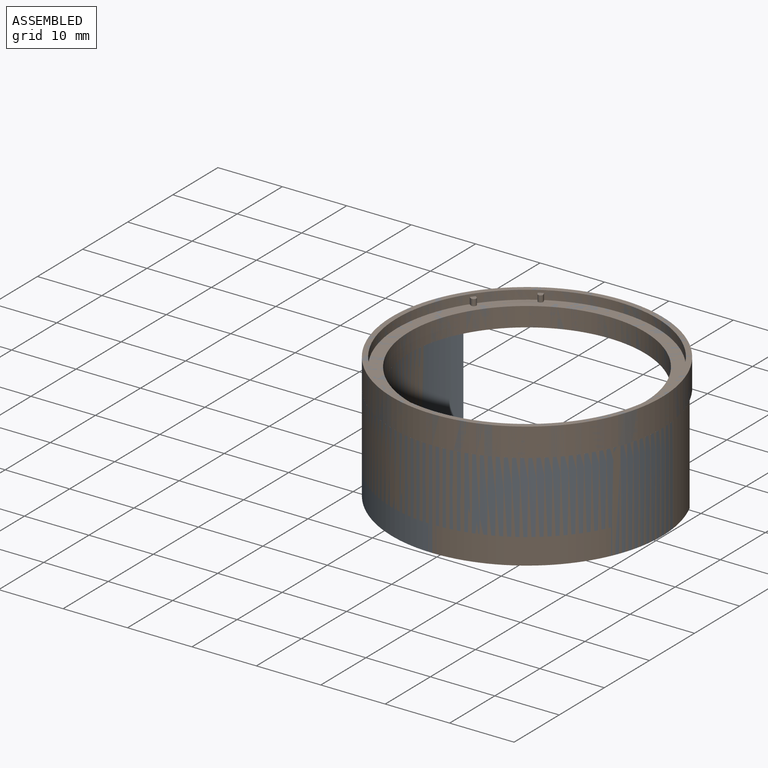
[diagram: assembled view]
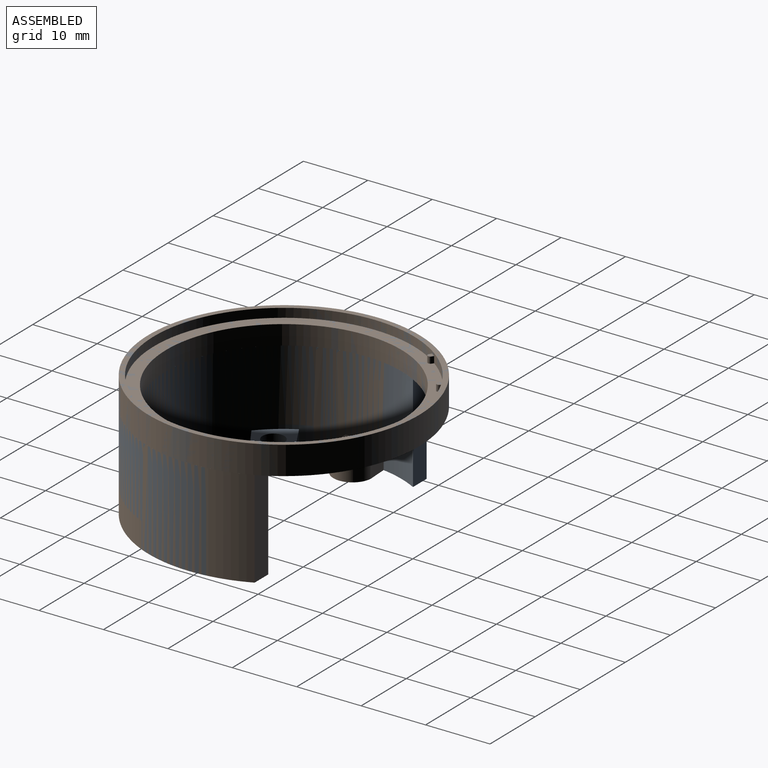
[diagram: assembled view, second angle]
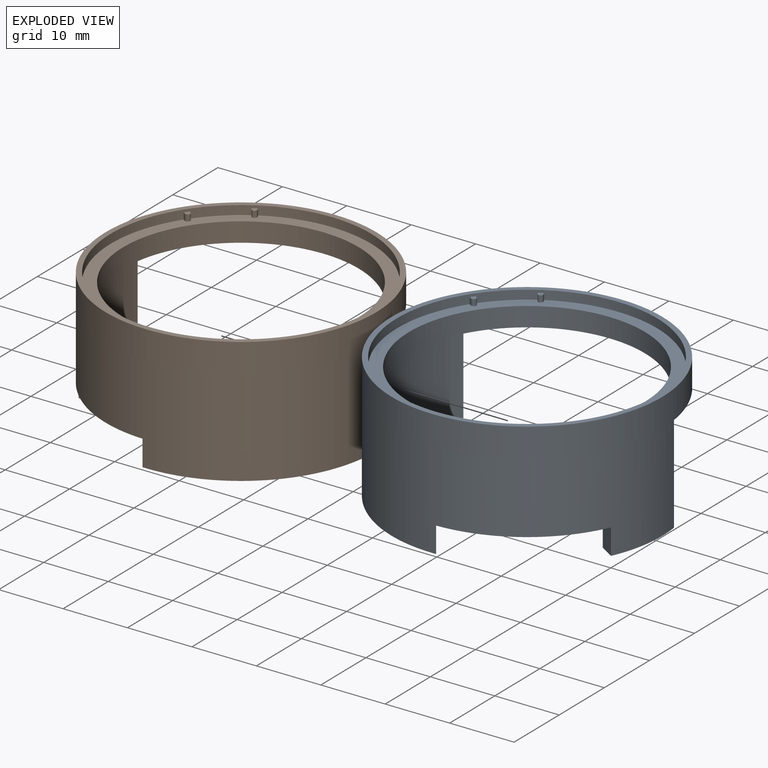
[diagram: exploded view]
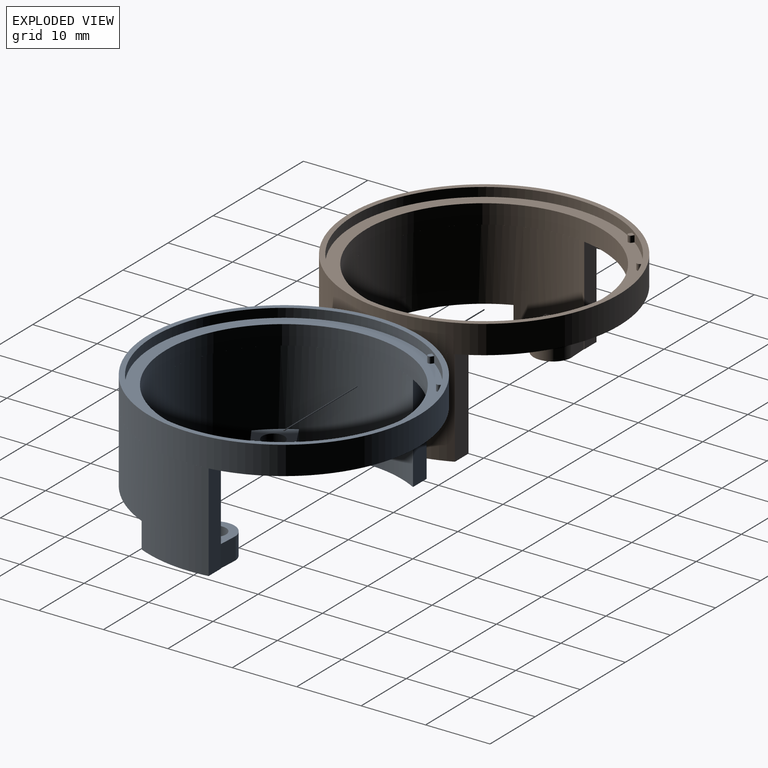
[diagram: exploded view, second angle]
FCSTD DOCUMENT  (FreeCAD 1.0RUnknown)
Label: cirque
License: All rights reserved
LicenseURL: https://en.wikipedia.org/wiki/All_rights_reserved
objects: Sketcher::SketchObject×3, App::Link×3, PartDesign::Pad×2, App::Part×2, Part::Feature×1, Part::Mirroring×1, PartDesign::Pocket×1, PartDesign::Body×1
note: 18 computed .brp shape members not serialized (recipe doc carries the construction recipe); baked Part::Feature solids carry a one-line shape summary decoded from their .brp

FEATURE [Part::Feature] Part__Feature  label="cirque 40mm"
  Placement = pos=(52.4,-44.7,14.1) rot=(0,0,1;1.5708rad)
  shape: bbox 42 x 42 x 4.4 mm, 14 faces (baked)
FEATURE [Sketcher::SketchObject] Sketch
  ArcFitTolerance = 1e-06
  AttachmentSupport = -> [XY_Plane001]
  FullyConstrained = false
  MakeInternals = false
  MapMode = 5
  sketch-geometry (4):
    g0: ArcOfCircle CenterX=0 CenterY=0 CenterZ=0 NormalX=0 NormalY=0 NormalZ=1 AngleXU=0 Radius=21 StartAngle=2.70864 EndAngle=6.42098
    g1: ArcOfCircle CenterX=0 CenterY=0 CenterZ=0 NormalX=0 NormalY=0 NormalZ=1 AngleXU=0 Radius=18.3 StartAngle=2.63928 EndAngle=6.44147
    g2: LineSegment StartX=-19.0623 StartY=8.81065 StartZ=0 EndX=-16.0394 EndY=8.81065 EndZ=0
    g3: LineSegment StartX=18.0712 StartY=2.88445 StartZ=0 EndX=20.801 EndY=2.88445 EndZ=0
  constraints (10):
    c: Radius(g0) = 21
    c: Coincident(g0,g-1)
    c: Radius(g1) = 18.3
    c: Coincident(g1,g0)
    c: Coincident(g2,g0)
    c: Coincident(g2,g1)
    c: Coincident(g3,g1)
    c: Coincident(g3,g0)
    c: Horizontal(g2)
    c: Horizontal(g3)
FEATURE [PartDesign::Pad] Pad
  Direction = (0,0,1)
  Length = 15.1
  Length2 = 10
  Profile = -> Sketch
  ReferenceAxis = -> Sketch [N_Axis]
  Refine = true
  Suppressed = false
  Type = 0
FEATURE [App::Link] Link  label="cirque 40mm001"
  LinkPlacement = pos=(0,0,18.1) rot=(0,0,1;1.5708rad)
  LinkedObject = -> Part__Feature
  Placement = pos=(0,0,18.1) rot=(0,0,1;1.5708rad)
FEATURE [Sketcher::SketchObject] Sketch001
  ArcFitTolerance = 1e-06
  AttachmentSupport = -> [XY_Plane001]
  FullyConstrained = false
  MakeInternals = false
  MapMode = 5
  sketch-geometry (14):
    g0: Circle [constr] CenterX=0 CenterY=0 CenterZ=0 NormalX=0 NormalY=0 NormalZ=1 AngleXU=0 Radius=15.25
    g1: LineSegment [constr] StartX=0 StartY=0 StartZ=0 EndX=15.25 EndY=0 EndZ=0
    g2: LineSegment [constr] StartX=0 StartY=0 StartZ=0 EndX=-11.6822 EndY=-9.80251 EndZ=0
    g3: Circle CenterX=15.25 CenterY=0 CenterZ=0 NormalX=0 NormalY=0 NormalZ=1 AngleXU=0 Radius=1.7
    g4: Circle CenterX=-11.6822 CenterY=-9.80251 CenterZ=0 NormalX=0 NormalY=0 NormalZ=1 AngleXU=0 Radius=1.7
    g5: ArcOfCircle CenterX=15.25 CenterY=0 CenterZ=0 NormalX=0 NormalY=0 NormalZ=1 AngleXU=0 Radius=3 StartAngle=1.66932 EndAngle=4.61387
    g6: ArcOfCircle CenterX=-11.6822 CenterY=-9.80251 CenterZ=0 NormalX=0 NormalY=0 NormalZ=1 AngleXU=0 Radius=3 StartAngle=5.50904 EndAngle=8.45359
    g7: LineSegment [constr] StartX=-11.6822 StartY=-9.80251 StartZ=0 EndX=15.25 EndY=0 EndZ=0
    g8: LineSegment StartX=-13.3751 StartY=-7.32585 StartZ=0 EndX=-16.3659 EndY=-9.06894 EndZ=0
    g9: LineSegment StartX=-16.3659 StartY=-9.06894 StartZ=0 EndX=-12.9413 EndY=-14.0541 EndZ=0
    g10: LineSegment StartX=-9.53712 StartY=-11.8998 StartZ=0 EndX=-12.9413 EndY=-14.0541 EndZ=0
    g11: LineSegment StartX=14.9549 StartY=2.98545 StartZ=0 EndX=18.203 EndY=2.81232 EndZ=0
    g12: LineSegment StartX=18.203 StartY=2.81232 StartZ=0 EndX=18.9442 EndY=-3.11774 EndZ=0
    g13: LineSegment StartX=18.9442 StartY=-3.11774 StartZ=0 EndX=14.9549 EndY=-2.98545 EndZ=0
  constraints (30):
    c: Diameter(g0) = 30.5
    c: Coincident(g0,g-1)
    c: Coincident(g1,g0)
    c: PointOnObject(g1,g0)
    c: Coincident(g2,g0)
    c: PointOnObject(g2,g0)
    c: Angle(g1,g-1) = 0
    c: Angle(g-1,g2) = 0.698132
    c: Diameter(g3) = 3.4
    c: Coincident(g3,g1)
    c: Diameter(g4) = 3.4
    c: Coincident(g4,g2)
    c: Radius(g5) = 3
    c: Coincident(g5,g1)
    c: PointOnObject(g5,g0)
    c: PointOnObject(g5,g0)
    c: Radius(g6) = 3
    c: Coincident(g6,g2)
    c: PointOnObject(g6,g0)
    c: PointOnObject(g6,g0)
    c: Coincident(g7,g2)
    c: Coincident(g7,g1)
    c: Coincident(g8,g6)
    c: Coincident(g9,g8)
    c: Coincident(g10,g6)
    c: Coincident(g10,g9)
    c: Coincident(g11,g5)
    c: Coincident(g12,g11)
    c: Coincident(g13,g12)
    c: Coincident(g13,g5)
FEATURE [PartDesign::Pad] Pad001
  BaseFeature = -> Pad
  Direction = (0,0,1)
  Length = 3.4
  Length2 = 10
  Profile = -> Sketch001
  ReferenceAxis = -> Sketch001 [N_Axis]
  Refine = true
  Suppressed = false
  Type = 0
FEATURE [App::Link] Link001  label="Body001"
  LinkedObject = -> Body
FEATURE [App::Link] Link002  label="cirque 40mm002"
  LinkPlacement = pos=(0,0,18.1) rot=(0,0,1;1.5708rad)
  LinkedObject = -> Part__Feature
  Placement = pos=(0,0,18.1) rot=(0,0,1;1.5708rad)
FEATURE [Part::Mirroring] Part__Mirroring  label="Body001 (Mirror #1)"
  Base = (0,0,0)
  Normal = (1,0,0)
  Source = -> Link001
FEATURE [App::Part] Part001  label="mount-right"
  Group = -> [Link001,Link002,Part__Mirroring]
  Origin = -> Origin002
FEATURE [Sketcher::SketchObject] Sketch002
  ArcFitTolerance = 1e-06
  AttachmentSupport = -> [Pad001]
  FullyConstrained = false
  MakeInternals = false
  MapMode = 5
  Placement = pos=(0,0,0) rot=(1,0,0;3.14159rad)
  sketch-geometry (4):
    g0: LineSegment StartX=-4.61462 StartY=16.5029 StartZ=0 EndX=7.15867 EndY=26.6708 EndZ=0
    g1: LineSegment StartX=7.15867 StartY=26.6708 StartZ=0 EndX=21.4504 EndY=10.1569 EndZ=0
    g2: LineSegment StartX=21.4504 StartY=10.1569 StartZ=0 EndX=10.1664 EndY=3.00847 EndZ=0
    g3: LineSegment StartX=10.1664 StartY=3.00847 StartZ=0 EndX=-4.61462 EndY=16.5029 EndZ=0
  constraints (4):
    c: Coincident(g0,g1)
    c: Coincident(g1,g2)
    c: Coincident(g2,g3)
    c: Coincident(g3,g0)
FEATURE [PartDesign::Pocket] Pocket
  BaseFeature = -> Pad001
  Direction = (0,0,1)
  Length = 4
  Length2 = 5
  Profile = -> Sketch002
  ReferenceAxis = -> Sketch002 [N_Axis]
  Refine = true
  Suppressed = false
  Type = 0
FEATURE [PartDesign::Body] Body
  AllowCompound = false
  Group = -> [Sketch,Pad,Sketch001,Pad001,Sketch002,Pocket]
  Origin = -> Origin001
  Tip = -> Pocket
FEATURE [App::Part] Part  label="mount-left"
  Group = -> [Body,Link]
  Origin = -> Origin
